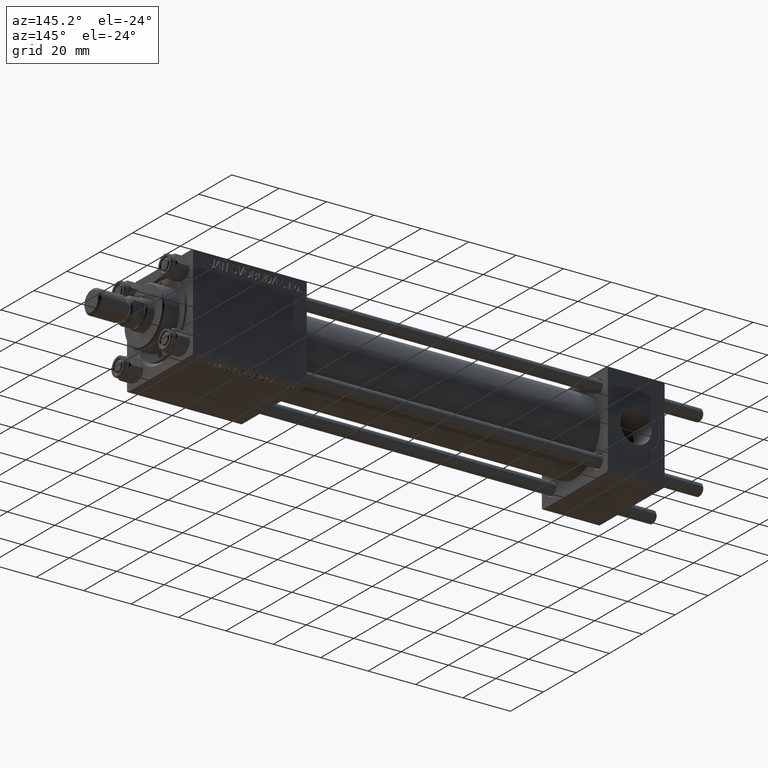
[diagram: clean part render]
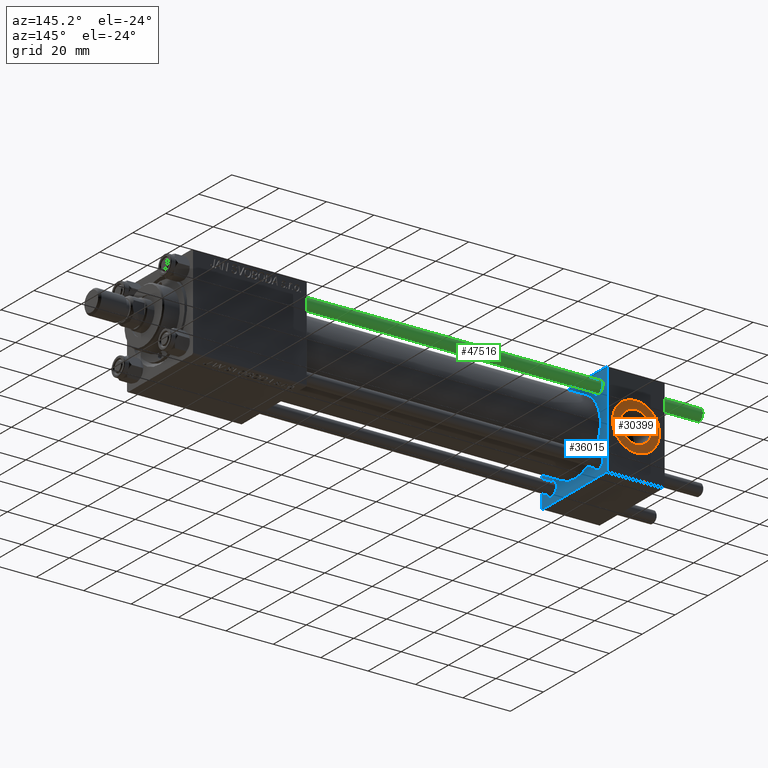
[diagram: same view with three faces highlighted in distinct colors, each labeled with its STEP entity id]
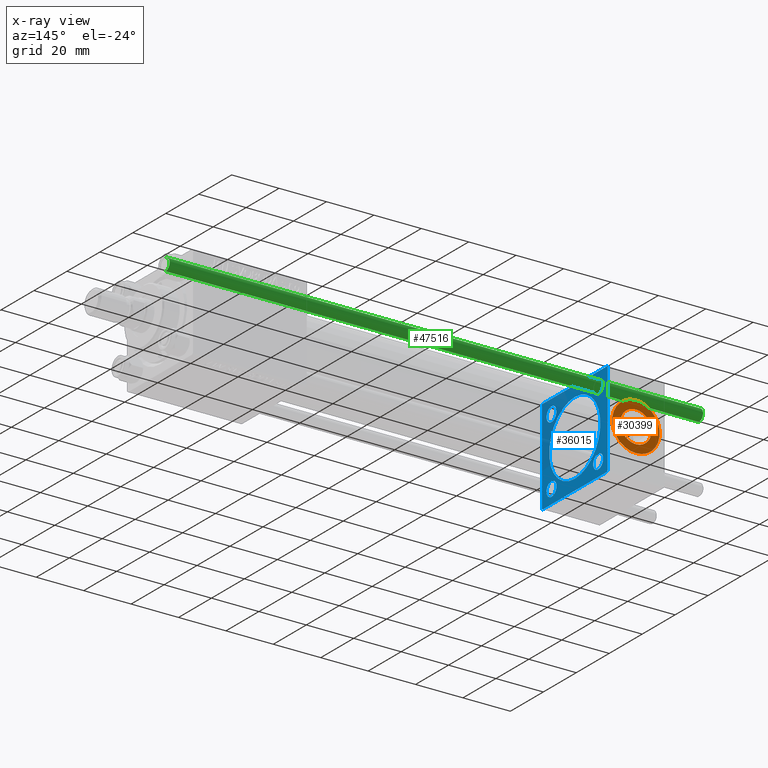
[diagram: x-ray of the same camera — body ghosted, the three highlighted faces saturated]
A machine part, auxiliary view with three faces highlighted in distinct colors.
The next image is the same camera in x-ray (body ghosted, the three faces saturated) — at least one of them is partly hidden behind the body in this view.
Their STEP definitions:

[orange] entity #30399 — the highlighted planar face has unit normal (0, 1, 0).
#1925 = CARTESIAN_POINT ( 'NONE',  ( 12.00000000000000000, 19.80000000000000071, 10.00000000000000000 ) ) ;
#4353 = DIRECTION ( 'NONE',  ( 0.000000000000000000, 0.000000000000000000, 1.000000000000000000 ) ) ;
#5680 = CIRCLE ( 'NONE', #31742, 10.00000000000000000 ) ;
#6627 = AXIS2_PLACEMENT_3D ( 'NONE', #45671, #37779, #10763 ) ;
#6678 = FACE_BOUND ( 'NONE', #34672, .T. ) ;
#7136 = EDGE_CURVE ( 'NONE', #9355, #10567, #5680, .T. ) ;
#7183 = CARTESIAN_POINT ( 'NONE',  ( 12.00000000000000000, 19.80000000000000071, 0.000000000000000000 ) ) ;
#8844 = DIRECTION ( 'NONE',  ( 0.000000000000000000, 0.000000000000000000, 1.000000000000000000 ) ) ;
#9355 = VERTEX_POINT ( 'NONE', #1925 ) ;
#10449 = DIRECTION ( 'NONE',  ( 0.000000000000000000, 0.000000000000000000, 1.000000000000000000 ) ) ;
#10567 = VERTEX_POINT ( 'NONE', #15967 ) ;
#10763 = DIRECTION ( 'NONE',  ( 0.000000000000000000, -0.000000000000000000, 1.000000000000000000 ) ) ;
#11243 = ORIENTED_EDGE ( 'NONE', *, *, #17162, .F. ) ;
#11561 = EDGE_LOOP ( 'NONE', ( #35197, #48381 ) ) ;
#11650 = VERTEX_POINT ( 'NONE', #49046 ) ;
#11768 = CARTESIAN_POINT ( 'NONE',  ( 12.00000000000000000, 19.80000000000000071, 0.000000000000000000 ) ) ;
#13777 = CARTESIAN_POINT ( 'NONE',  ( 12.00000000000000000, 19.80000000000000071, 0.000000000000000000 ) ) ;
#13820 = VERTEX_POINT ( 'NONE', #37598 ) ;
#15601 = AXIS2_PLACEMENT_3D ( 'NONE', #11768, #47416, #4353 ) ;
#15967 = CARTESIAN_POINT ( 'NONE',  ( 12.00000000000000178, 19.80000000000000071, -10.00000000000000000 ) ) ;
#16508 = CARTESIAN_POINT ( 'NONE',  ( 12.00000000000000000, 19.80000000000000071, 0.000000000000000000 ) ) ;
#17162 = EDGE_CURVE ( 'NONE', #13820, #11650, #25442, .T. ) ;
#18920 = DIRECTION ( 'NONE',  ( 0.000000000000000000, 1.000000000000000000, 0.000000000000000000 ) ) ;
#22230 = PLANE ( 'NONE',  #6627 ) ;
#25442 = CIRCLE ( 'NONE', #26243, 6.579999999999998295 ) ;
#26243 = AXIS2_PLACEMENT_3D ( 'NONE', #16508, #32289, #8844 ) ;
#27805 = CIRCLE ( 'NONE', #15601, 6.579999999999998295 ) ;
#30332 = EDGE_CURVE ( 'NONE', #10567, #9355, #31870, .T. ) ;
#30399 = ADVANCED_FACE ( 'NONE', ( #6678, #41602 ), #22230, .T. ) ;
#30565 = EDGE_CURVE ( 'NONE', #11650, #13820, #27805, .T. ) ;
#31742 = AXIS2_PLACEMENT_3D ( 'NONE', #13777, #48422, #10449 ) ;
#31870 = CIRCLE ( 'NONE', #38400, 10.00000000000000000 ) ;
#32289 = DIRECTION ( 'NONE',  ( 0.000000000000000000, 1.000000000000000000, 0.000000000000000000 ) ) ;
#33941 = DIRECTION ( 'NONE',  ( 0.000000000000000000, 0.000000000000000000, 1.000000000000000000 ) ) ;
#34672 = EDGE_LOOP ( 'NONE', ( #45096, #11243 ) ) ;
#35197 = ORIENTED_EDGE ( 'NONE', *, *, #7136, .T. ) ;
#37598 = CARTESIAN_POINT ( 'NONE',  ( 12.00000000000000000, 19.80000000000000071, -6.579999999999998295 ) ) ;
#37779 = DIRECTION ( 'NONE',  ( 0.000000000000000000, 1.000000000000000000, 0.000000000000000000 ) ) ;
#38400 = AXIS2_PLACEMENT_3D ( 'NONE', #7183, #18920, #33941 ) ;
#41602 = FACE_OUTER_BOUND ( 'NONE', #11561, .T. ) ;
#45096 = ORIENTED_EDGE ( 'NONE', *, *, #30565, .F. ) ;
#45671 = CARTESIAN_POINT ( 'NONE',  ( 12.00000000000000000, 19.80000000000000071, 0.000000000000000000 ) ) ;
#47416 = DIRECTION ( 'NONE',  ( 0.000000000000000000, 1.000000000000000000, 0.000000000000000000 ) ) ;
#48381 = ORIENTED_EDGE ( 'NONE', *, *, #30332, .T. ) ;
#48422 = DIRECTION ( 'NONE',  ( 0.000000000000000000, 1.000000000000000000, 0.000000000000000000 ) ) ;
#49046 = CARTESIAN_POINT ( 'NONE',  ( 12.00000000000000000, 19.80000000000000071, 6.579999999999998295 ) ) ;

[blue] entity #36015 — the highlighted planar face has unit normal (-1, 0, 0).
#600 = DIRECTION ( 'NONE',  ( -1.000000000000000000, -0.000000000000000000, -0.000000000000000000 ) ) ;
#851 = CARTESIAN_POINT ( 'NONE',  ( 24.00000000000000000, 14.14999999999999858, -14.15000000000000036 ) ) ;
#866 = FACE_BOUND ( 'NONE', #4630, .T. ) ;
#927 = DIRECTION ( 'NONE',  ( 1.000000000000000000, 0.000000000000000000, 0.000000000000000000 ) ) ;
#1123 = CARTESIAN_POINT ( 'NONE',  ( 24.00000000000000000, 20.00000000000000000, 20.00000000000000000 ) ) ;
#1411 = ORIENTED_EDGE ( 'NONE', *, *, #35810, .T. ) ;
#1423 = CARTESIAN_POINT ( 'NONE',  ( 24.00000000000000000, -14.14999999999999503, 14.15000000000000391 ) ) ;
#2600 = VERTEX_POINT ( 'NONE', #21134 ) ;
#3687 = LINE ( 'NONE', #30197, #34473 ) ;
#4067 = LINE ( 'NONE', #50447, #28954 ) ;
#4397 = CARTESIAN_POINT ( 'NONE',  ( 24.00000000000000000, -14.14999999999999503, -11.15000000000000391 ) ) ;
#4630 = EDGE_LOOP ( 'NONE', ( #25925, #41077 ) ) ;
#4733 = DIRECTION ( 'NONE',  ( 0.000000000000000000, 0.000000000000000000, 1.000000000000000000 ) ) ;
#5282 = CARTESIAN_POINT ( 'NONE',  ( 23.99999999999999289, 0.000000000000000000, 15.50000000000000000 ) ) ;
#5291 = CARTESIAN_POINT ( 'NONE',  ( 24.00000000000000000, 14.14999999999999858, 14.15000000000000036 ) ) ;
#5476 = VERTEX_POINT ( 'NONE', #24197 ) ;
#5678 = DIRECTION ( 'NONE',  ( -0.000000000000000000, 0.000000000000000000, 1.000000000000000000 ) ) ;
#5871 = CARTESIAN_POINT ( 'NONE',  ( 24.00000000000000000, -20.00000000000000355, 19.49999999999998224 ) ) ;
#6035 = CIRCLE ( 'NONE', #12571, 3.000000000000000888 ) ;
#6675 = VERTEX_POINT ( 'NONE', #9116 ) ;
#7511 = FACE_BOUND ( 'NONE', #12714, .T. ) ;
#7700 = CARTESIAN_POINT ( 'NONE',  ( 24.00000000000000000, -19.50000000000000711, -20.00000000000000000 ) ) ;
#7719 = AXIS2_PLACEMENT_3D ( 'NONE', #35793, #8281, #19761 ) ;
#7723 = CARTESIAN_POINT ( 'NONE',  ( 24.00000000000000000, 20.00000000000000000, 19.49999999999999289 ) ) ;
#7741 = EDGE_LOOP ( 'NONE', ( #34742, #21322 ) ) ;
#8281 = DIRECTION ( 'NONE',  ( -1.000000000000000000, -0.000000000000000000, -0.000000000000000000 ) ) ;
#8323 = AXIS2_PLACEMENT_3D ( 'NONE', #851, #600, #34762 ) ;
#8654 = EDGE_CURVE ( 'NONE', #18415, #47073, #13125, .T. ) ;
#9116 = CARTESIAN_POINT ( 'NONE',  ( 24.00000000000000000, 20.00000000000000000, -19.50000000000002132 ) ) ;
#9246 = AXIS2_PLACEMENT_3D ( 'NONE', #32694, #48244, #5678 ) ;
#9596 = DIRECTION ( 'NONE',  ( 0.000000000000000000, -1.000000000000000000, 1.734723475976807094E-16 ) ) ;
#9837 = DIRECTION ( 'NONE',  ( 0.000000000000000000, 0.000000000000000000, 1.000000000000000000 ) ) ;
#10483 = ORIENTED_EDGE ( 'NONE', *, *, #22232, .T. ) ;
#10583 = DIRECTION ( 'NONE',  ( 0.000000000000000000, -0.7071067811865425767, 0.7071067811865525687 ) ) ;
#10645 = DIRECTION ( 'NONE',  ( -1.000000000000000000, -0.000000000000000000, -0.000000000000000000 ) ) ;
#10712 = DIRECTION ( 'NONE',  ( -1.000000000000000000, -0.000000000000000000, -0.000000000000000000 ) ) ;
#10907 = DIRECTION ( 'NONE',  ( 0.000000000000000000, 0.000000000000000000, 1.000000000000000000 ) ) ;
#11020 = EDGE_CURVE ( 'NONE', #14277, #44079, #45858, .T. ) ;
#11203 = CARTESIAN_POINT ( 'NONE',  ( 24.00000000000000000, -20.00000000000000355, 19.99999999999998934 ) ) ;
#11297 = VERTEX_POINT ( 'NONE', #5282 ) ;
#11769 = EDGE_CURVE ( 'NONE', #37093, #12731, #20548, .T. ) ;
#11834 = VECTOR ( 'NONE', #47885, 1000.000000000000114 ) ;
#12062 = DIRECTION ( 'NONE',  ( -1.000000000000000000, -0.000000000000000000, -0.000000000000000000 ) ) ;
#12571 = AXIS2_PLACEMENT_3D ( 'NONE', #13351, #29636, #33453 ) ;
#12662 = EDGE_CURVE ( 'NONE', #42008, #25641, #25415, .T. ) ;
#12714 = EDGE_LOOP ( 'NONE', ( #14367, #42009 ) ) ;
#12731 = VERTEX_POINT ( 'NONE', #39333 ) ;
#13125 = CIRCLE ( 'NONE', #31808, 3.000000000000000888 ) ;
#13351 = CARTESIAN_POINT ( 'NONE',  ( 24.00000000000000000, -14.14999999999999503, -14.15000000000000391 ) ) ;
#13436 = LINE ( 'NONE', #44519, #46865 ) ;
#13684 = CIRCLE ( 'NONE', #25885, 2.999999999999948930 ) ;
#14277 = VERTEX_POINT ( 'NONE', #5871 ) ;
#14367 = ORIENTED_EDGE ( 'NONE', *, *, #50185, .T. ) ;
#15082 = DIRECTION ( 'NONE',  ( -0.000000000000000000, 0.7071067811865524577, 0.7071067811865426878 ) ) ;
#15780 = EDGE_CURVE ( 'NONE', #32733, #5476, #3687, .T. ) ;
#15811 = VECTOR ( 'NONE', #48248, 1000.000000000000000 ) ;
#15818 = DIRECTION ( 'NONE',  ( 0.000000000000000000, 0.7071067811865401342, -0.7071067811865549002 ) ) ;
#16561 = LINE ( 'NONE', #28266, #11834 ) ;
#17264 = ORIENTED_EDGE ( 'NONE', *, *, #38867, .T. ) ;
#17696 = EDGE_LOOP ( 'NONE', ( #35371, #10483 ) ) ;
#18415 = VERTEX_POINT ( 'NONE', #47139 ) ;
#18488 = DIRECTION ( 'NONE',  ( 0.000000000000000000, -1.000000000000000000, -2.602085213965210149E-16 ) ) ;
#19217 = EDGE_LOOP ( 'NONE', ( #34761, #29854 ) ) ;
#19761 = DIRECTION ( 'NONE',  ( 0.000000000000000000, 0.000000000000000000, 1.000000000000000000 ) ) ;
#20235 = CARTESIAN_POINT ( 'NONE',  ( 24.00000000000000000, -14.14999999999999503, 17.15000000000000568 ) ) ;
#20548 = CIRCLE ( 'NONE', #8323, 2.999999999999948930 ) ;
#21134 = CARTESIAN_POINT ( 'NONE',  ( 24.00000000000000000, 14.14999999999999858, 17.14999999999994884 ) ) ;
#21311 = DIRECTION ( 'NONE',  ( 1.000000000000000000, 0.000000000000000000, 0.000000000000000000 ) ) ;
#21322 = ORIENTED_EDGE ( 'NONE', *, *, #12662, .T. ) ;
#22106 = ORIENTED_EDGE ( 'NONE', *, *, #39791, .T. ) ;
#22201 = ORIENTED_EDGE ( 'NONE', *, *, #44316, .T. ) ;
#22232 = EDGE_CURVE ( 'NONE', #2600, #37264, #41108, .T. ) ;
#22459 = VECTOR ( 'NONE', #15082, 1000.000000000000000 ) ;
#22952 = VERTEX_POINT ( 'NONE', #7700 ) ;
#23060 = FACE_BOUND ( 'NONE', #19217, .T. ) ;
#23127 = CARTESIAN_POINT ( 'NONE',  ( 24.00000000000000000, 14.14999999999999858, 14.15000000000000036 ) ) ;
#23573 = ORIENTED_EDGE ( 'NONE', *, *, #39986, .F. ) ;
#23750 = CARTESIAN_POINT ( 'NONE',  ( 24.00000000000000000, -20.00000000000000000, -19.49999999999999645 ) ) ;
#24197 = CARTESIAN_POINT ( 'NONE',  ( 24.00000000000000000, 19.50000000000000000, 20.00000000000000000 ) ) ;
#25117 = CARTESIAN_POINT ( 'NONE',  ( 23.99999999999999289, 0.000000000000000000, 0.000000000000000000 ) ) ;
#25415 = CIRCLE ( 'NONE', #31921, 3.000000000000000888 ) ;
#25641 = VERTEX_POINT ( 'NONE', #38896 ) ;
#25865 = DIRECTION ( 'NONE',  ( 0.000000000000000000, 0.000000000000000000, 1.000000000000000000 ) ) ;
#25885 = AXIS2_PLACEMENT_3D ( 'NONE', #45622, #10712, #43806 ) ;
#25925 = ORIENTED_EDGE ( 'NONE', *, *, #8654, .T. ) ;
#27458 = AXIS2_PLACEMENT_3D ( 'NONE', #39679, #927, #4733 ) ;
#28266 = CARTESIAN_POINT ( 'NONE',  ( 24.00000000000000000, -20.00000000000000355, 19.49999999999998224 ) ) ;
#28345 = DIRECTION ( 'NONE',  ( 0.000000000000000000, 0.000000000000000000, 1.000000000000000000 ) ) ;
#28493 = DIRECTION ( 'NONE',  ( 0.000000000000000000, 0.000000000000000000, 1.000000000000000000 ) ) ;
#28954 = VECTOR ( 'NONE', #15818, 1000.000000000000000 ) ;
#29115 = DIRECTION ( 'NONE',  ( 0.000000000000000000, 8.673617379884036705E-17, -1.000000000000000000 ) ) ;
#29636 = DIRECTION ( 'NONE',  ( -1.000000000000000000, -0.000000000000000000, -0.000000000000000000 ) ) ;
#29854 = ORIENTED_EDGE ( 'NONE', *, *, #38401, .F. ) ;
#30015 = EDGE_LOOP ( 'NONE', ( #23573, #22106, #37064, #37309, #1411, #17264, #39513, #22201 ) ) ;
#30197 = CARTESIAN_POINT ( 'NONE',  ( 24.00000000000000000, 19.50000000000000000, 20.00000000000000000 ) ) ;
#30700 = LINE ( 'NONE', #45251, #42651 ) ;
#31083 = VECTOR ( 'NONE', #29115, 1000.000000000000000 ) ;
#31322 = CIRCLE ( 'NONE', #7719, 3.000000000000000888 ) ;
#31808 = AXIS2_PLACEMENT_3D ( 'NONE', #1423, #37341, #25865 ) ;
#31921 = AXIS2_PLACEMENT_3D ( 'NONE', #35996, #12062, #28345 ) ;
#31948 = FACE_BOUND ( 'NONE', #17696, .T. ) ;
#32335 = CIRCLE ( 'NONE', #27458, 15.50000000000000000 ) ;
#32694 = CARTESIAN_POINT ( 'NONE',  ( 24.00000000000000000, 0.000000000000000000, 0.000000000000000000 ) ) ;
#32733 = VERTEX_POINT ( 'NONE', #7723 ) ;
#32952 = CARTESIAN_POINT ( 'NONE',  ( 24.00000000000000000, 14.14999999999999858, -11.15000000000005365 ) ) ;
#33453 = DIRECTION ( 'NONE',  ( 0.000000000000000000, 0.000000000000000000, 1.000000000000000000 ) ) ;
#33919 = CARTESIAN_POINT ( 'NONE',  ( 24.00000000000000000, 20.00000000000000000, -19.50000000000002132 ) ) ;
#34216 = CARTESIAN_POINT ( 'NONE',  ( 24.00000000000000000, 14.14999999999999858, 11.15000000000005365 ) ) ;
#34473 = VECTOR ( 'NONE', #10583, 999.9999999999998863 ) ;
#34742 = ORIENTED_EDGE ( 'NONE', *, *, #37220, .T. ) ;
#34761 = ORIENTED_EDGE ( 'NONE', *, *, #47865, .F. ) ;
#34762 = DIRECTION ( 'NONE',  ( 0.000000000000000000, 0.000000000000000000, 1.000000000000000000 ) ) ;
#35371 = ORIENTED_EDGE ( 'NONE', *, *, #36540, .T. ) ;
#35678 = VERTEX_POINT ( 'NONE', #45000 ) ;
#35774 = FACE_BOUND ( 'NONE', #7741, .T. ) ;
#35793 = CARTESIAN_POINT ( 'NONE',  ( 24.00000000000000000, -14.14999999999999503, 14.15000000000000391 ) ) ;
#35810 = EDGE_CURVE ( 'NONE', #5476, #35678, #30700, .T. ) ;
#35996 = CARTESIAN_POINT ( 'NONE',  ( 24.00000000000000000, -14.14999999999999503, -14.15000000000000391 ) ) ;
#36015 = ADVANCED_FACE ( 'NONE', ( #35774, #7511, #866, #31948, #23060, #36783 ), #48499, .F. ) ;
#36540 = EDGE_CURVE ( 'NONE', #37264, #2600, #45123, .T. ) ;
#36783 = FACE_OUTER_BOUND ( 'NONE', #30015, .T. ) ;
#37064 = ORIENTED_EDGE ( 'NONE', *, *, #37116, .F. ) ;
#37093 = VERTEX_POINT ( 'NONE', #32952 ) ;
#37116 = EDGE_CURVE ( 'NONE', #32733, #6675, #40377, .T. ) ;
#37220 = EDGE_CURVE ( 'NONE', #25641, #42008, #6035, .T. ) ;
#37264 = VERTEX_POINT ( 'NONE', #34216 ) ;
#37309 = ORIENTED_EDGE ( 'NONE', *, *, #15780, .T. ) ;
#37341 = DIRECTION ( 'NONE',  ( -1.000000000000000000, -0.000000000000000000, -0.000000000000000000 ) ) ;
#37947 = EDGE_CURVE ( 'NONE', #47073, #18415, #31322, .T. ) ;
#38401 = EDGE_CURVE ( 'NONE', #40526, #11297, #41887, .T. ) ;
#38867 = EDGE_CURVE ( 'NONE', #35678, #14277, #16561, .T. ) ;
#38896 = CARTESIAN_POINT ( 'NONE',  ( 24.00000000000000000, -14.14999999999999503, -17.15000000000000568 ) ) ;
#39333 = CARTESIAN_POINT ( 'NONE',  ( 24.00000000000000000, 14.14999999999999858, -17.14999999999994884 ) ) ;
#39513 = ORIENTED_EDGE ( 'NONE', *, *, #11020, .T. ) ;
#39679 = CARTESIAN_POINT ( 'NONE',  ( 23.99999999999999289, 0.000000000000000000, 0.000000000000000000 ) ) ;
#39791 = EDGE_CURVE ( 'NONE', #41772, #6675, #41835, .T. ) ;
#39986 = EDGE_CURVE ( 'NONE', #41772, #22952, #13436, .T. ) ;
#40252 = AXIS2_PLACEMENT_3D ( 'NONE', #23127, #10645, #10907 ) ;
#40377 = LINE ( 'NONE', #1123, #15811 ) ;
#40526 = VERTEX_POINT ( 'NONE', #41898 ) ;
#41077 = ORIENTED_EDGE ( 'NONE', *, *, #37947, .T. ) ;
#41108 = CIRCLE ( 'NONE', #44365, 2.999999999999948930 ) ;
#41772 = VERTEX_POINT ( 'NONE', #43468 ) ;
#41835 = LINE ( 'NONE', #33919, #22459 ) ;
#41887 = CIRCLE ( 'NONE', #48379, 15.50000000000000000 ) ;
#41898 = CARTESIAN_POINT ( 'NONE',  ( 23.99999999999999289, 1.898202538678397557E-15, -15.50000000000000000 ) ) ;
#42008 = VERTEX_POINT ( 'NONE', #4397 ) ;
#42009 = ORIENTED_EDGE ( 'NONE', *, *, #11769, .T. ) ;
#42651 = VECTOR ( 'NONE', #18488, 1000.000000000000000 ) ;
#43468 = CARTESIAN_POINT ( 'NONE',  ( 24.00000000000000000, 19.50000000000000711, -20.00000000000000711 ) ) ;
#43806 = DIRECTION ( 'NONE',  ( 0.000000000000000000, 0.000000000000000000, 1.000000000000000000 ) ) ;
#44048 = DIRECTION ( 'NONE',  ( -1.000000000000000000, -0.000000000000000000, -0.000000000000000000 ) ) ;
#44079 = VERTEX_POINT ( 'NONE', #23750 ) ;
#44316 = EDGE_CURVE ( 'NONE', #44079, #22952, #4067, .T. ) ;
#44365 = AXIS2_PLACEMENT_3D ( 'NONE', #5291, #44048, #28493 ) ;
#44519 = CARTESIAN_POINT ( 'NONE',  ( 24.00000000000000000, 20.00000000000000000, -20.00000000000000711 ) ) ;
#45000 = CARTESIAN_POINT ( 'NONE',  ( 24.00000000000000000, -19.49999999999999289, 19.99999999999998934 ) ) ;
#45123 = CIRCLE ( 'NONE', #40252, 2.999999999999948930 ) ;
#45251 = CARTESIAN_POINT ( 'NONE',  ( 24.00000000000000000, 20.00000000000000000, 20.00000000000000000 ) ) ;
#45622 = CARTESIAN_POINT ( 'NONE',  ( 24.00000000000000000, 14.14999999999999858, -14.15000000000000036 ) ) ;
#45858 = LINE ( 'NONE', #11203, #31083 ) ;
#46865 = VECTOR ( 'NONE', #9596, 1000.000000000000000 ) ;
#47073 = VERTEX_POINT ( 'NONE', #20235 ) ;
#47139 = CARTESIAN_POINT ( 'NONE',  ( 24.00000000000000000, -14.14999999999999503, 11.15000000000000391 ) ) ;
#47865 = EDGE_CURVE ( 'NONE', #11297, #40526, #32335, .T. ) ;
#47885 = DIRECTION ( 'NONE',  ( -0.000000000000000000, -0.7071067811865500152, -0.7071067811865451302 ) ) ;
#48244 = DIRECTION ( 'NONE',  ( -1.000000000000000000, 0.000000000000000000, -0.000000000000000000 ) ) ;
#48248 = DIRECTION ( 'NONE',  ( 0.000000000000000000, 0.000000000000000000, -1.000000000000000000 ) ) ;
#48379 = AXIS2_PLACEMENT_3D ( 'NONE', #25117, #21311, #9837 ) ;
#48499 = PLANE ( 'NONE',  #9246 ) ;
#50185 = EDGE_CURVE ( 'NONE', #12731, #37093, #13684, .T. ) ;
#50447 = CARTESIAN_POINT ( 'NONE',  ( 24.00000000000000000, -19.50000000000000711, -20.00000000000000000 ) ) ;

[green] entity #47516 — the highlighted cylindrical surface (edge-blend (fillet) strip) has radius 2.5 mm, axis along (-1, -0, -0).
#2261 = CARTESIAN_POINT ( 'NONE',  ( -2.500000000000000000, 0.000000000000000000, 226.0000000000000000 ) ) ;
#4595 = VERTEX_POINT ( 'NONE', #24494 ) ;
#6029 = VERTEX_POINT ( 'NONE', #20274 ) ;
#6857 = CIRCLE ( 'NONE', #47523, 2.500000000000000000 ) ;
#9174 = AXIS2_PLACEMENT_3D ( 'NONE', #31728, #20272, #16953 ) ;
#13769 = CARTESIAN_POINT ( 'NONE',  ( 2.500000000000000000, 3.061616997868383141E-16, 225.5000000000000284 ) ) ;
#15182 = CARTESIAN_POINT ( 'NONE',  ( -2.500000000000000000, 0.000000000000000000, 225.5000000000000284 ) ) ;
#16953 = DIRECTION ( 'NONE',  ( 1.000000000000000000, 0.000000000000000000, 0.000000000000000000 ) ) ;
#18003 = ORIENTED_EDGE ( 'NONE', *, *, #45453, .F. ) ;
#18023 = CARTESIAN_POINT ( 'NONE',  ( 0.000000000000000000, 0.000000000000000000, 0.4999999999999726885 ) ) ;
#18100 = VECTOR ( 'NONE', #23679, 1000.000000000000000 ) ;
#18422 = VECTOR ( 'NONE', #22646, 1000.000000000000000 ) ;
#20272 = DIRECTION ( 'NONE',  ( 0.000000000000000000, 0.000000000000000000, -1.000000000000000000 ) ) ;
#20274 = CARTESIAN_POINT ( 'NONE',  ( -2.500000000000000000, 0.000000000000000000, 0.4999999999999726885 ) ) ;
#20484 = EDGE_CURVE ( 'NONE', #4595, #6029, #6857, .T. ) ;
#20602 = CIRCLE ( 'NONE', #9174, 2.500000000000000000 ) ;
#21149 = VERTEX_POINT ( 'NONE', #13769 ) ;
#22646 = DIRECTION ( 'NONE',  ( -0.000000000000000000, -0.000000000000000000, -1.000000000000000000 ) ) ;
#22928 = FACE_OUTER_BOUND ( 'NONE', #41841, .T. ) ;
#23180 = DIRECTION ( 'NONE',  ( -1.000000000000000000, 0.000000000000000000, 0.000000000000000000 ) ) ;
#23679 = DIRECTION ( 'NONE',  ( -0.000000000000000000, -0.000000000000000000, -1.000000000000000000 ) ) ;
#23929 = CARTESIAN_POINT ( 'NONE',  ( 2.500000000000000000, 3.061616997868383141E-16, 226.0000000000000000 ) ) ;
#24494 = CARTESIAN_POINT ( 'NONE',  ( 2.500000000000000000, 3.061616997868383141E-16, 0.4999999999999726885 ) ) ;
#25818 = AXIS2_PLACEMENT_3D ( 'NONE', #34898, #30576, #23180 ) ;
#26415 = DIRECTION ( 'NONE',  ( -0.000000000000000000, -0.000000000000000000, 1.000000000000000000 ) ) ;
#28310 = EDGE_CURVE ( 'NONE', #21149, #4595, #47877, .T. ) ;
#30576 = DIRECTION ( 'NONE',  ( -0.000000000000000000, -0.000000000000000000, -1.000000000000000000 ) ) ;
#31071 = CYLINDRICAL_SURFACE ( 'NONE', #25818, 2.500000000000000000 ) ;
#31728 = CARTESIAN_POINT ( 'NONE',  ( 0.000000000000000000, 0.000000000000000000, 225.5000000000000284 ) ) ;
#33351 = LINE ( 'NONE', #2261, #18422 ) ;
#33615 = EDGE_CURVE ( 'NONE', #35815, #21149, #20602, .T. ) ;
#34088 = ORIENTED_EDGE ( 'NONE', *, *, #20484, .T. ) ;
#34224 = ORIENTED_EDGE ( 'NONE', *, *, #28310, .T. ) ;
#34898 = CARTESIAN_POINT ( 'NONE',  ( 0.000000000000000000, 0.000000000000000000, 226.0000000000000000 ) ) ;
#35815 = VERTEX_POINT ( 'NONE', #15182 ) ;
#38144 = DIRECTION ( 'NONE',  ( 1.000000000000000000, 0.000000000000000000, 0.000000000000000000 ) ) ;
#40720 = ORIENTED_EDGE ( 'NONE', *, *, #33615, .T. ) ;
#41841 = EDGE_LOOP ( 'NONE', ( #40720, #34224, #34088, #18003 ) ) ;
#45453 = EDGE_CURVE ( 'NONE', #35815, #6029, #33351, .T. ) ;
#47516 = ADVANCED_FACE ( 'NONE', ( #22928 ), #31071, .T. ) ;
#47523 = AXIS2_PLACEMENT_3D ( 'NONE', #18023, #26415, #38144 ) ;
#47877 = LINE ( 'NONE', #23929, #18100 ) ;